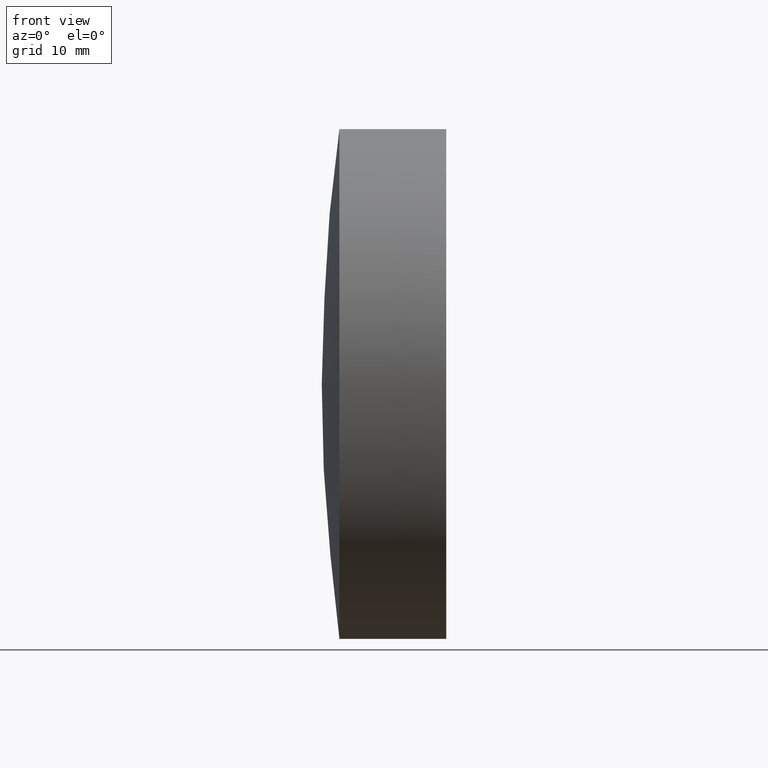
[diagram: clean part render]
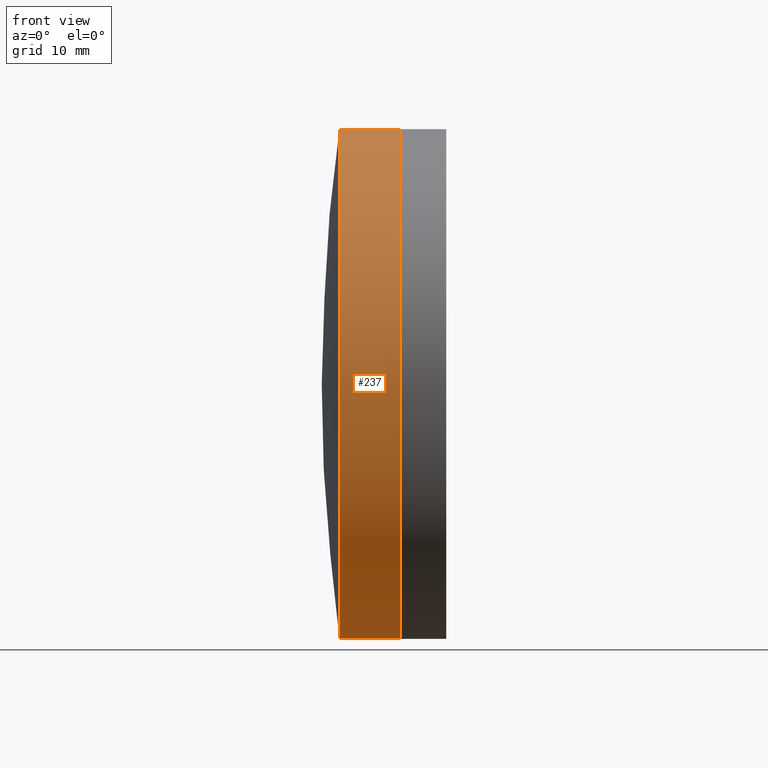
[diagram: same view with one face highlighted and labeled with its STEP entity id]
A machine part, front view. The second image highlights one B-rep face of the part: STEP entity #237.
In plain terms, the highlighted cylindrical surface (partial cylindrical patch) has radius 25.4 mm, axis along (-1, -0, -0).
Its self-contained STEP definition (entity closure, byte-faithful):
#9 = DIRECTION ( 'NONE',  ( -1.000000000000000000, -0.000000000000000000, -0.000000000000000000 ) ) ;
#17 = DIRECTION ( 'NONE',  ( 0.000000000000000000, 0.000000000000000000, 1.000000000000000000 ) ) ;
#35 = CARTESIAN_POINT ( 'NONE',  ( -24.78204361462951866, 13.39555463349441311, 25.39999999999999858 ) ) ;
#38 = EDGE_CURVE ( 'NONE', #236, #158, #132, .T. ) ;
#51 = ORIENTED_EDGE ( 'NONE', *, *, #69, .F. ) ;
#54 = CARTESIAN_POINT ( 'NONE',  ( -24.78204361462951866, 13.39555463349441666, -25.39999999999999858 ) ) ;
#69 = EDGE_CURVE ( 'NONE', #327, #120, #231, .T. ) ;
#82 = CIRCLE ( 'NONE', #206, 25.39999999999999858 ) ;
#105 = LINE ( 'NONE', #226, #260 ) ;
#108 = AXIS2_PLACEMENT_3D ( 'NONE', #240, #271, #394 ) ;
#110 = DIRECTION ( 'NONE',  ( 0.000000000000000000, 0.000000000000000000, 1.000000000000000000 ) ) ;
#118 = VERTEX_POINT ( 'NONE', #35 ) ;
#120 = VERTEX_POINT ( 'NONE', #165 ) ;
#132 = CIRCLE ( 'NONE', #392, 25.39999999999999858 ) ;
#136 = AXIS2_PLACEMENT_3D ( 'NONE', #184, #153, #17 ) ;
#138 = CARTESIAN_POINT ( 'NONE',  ( -24.78204361462953287, -12.00444536650550731, -3.110602869834267399E-15 ) ) ;
#140 = EDGE_LOOP ( 'NONE', ( #389, #357, #239, #393, #51, #371 ) ) ;
#144 = CYLINDRICAL_SURFACE ( 'NONE', #108, 25.39999999999999858 ) ;
#148 = EDGE_CURVE ( 'NONE', #236, #207, #166, .T. ) ;
#150 = CARTESIAN_POINT ( 'NONE',  ( -30.84311918241391837, -12.00444536650557303, -3.110602869834275682E-15 ) ) ;
#153 = DIRECTION ( 'NONE',  ( -1.000000000000000000, -0.000000000000000000, -0.000000000000000000 ) ) ;
#158 = VERTEX_POINT ( 'NONE', #138 ) ;
#163 = CARTESIAN_POINT ( 'NONE',  ( -24.78204361462951866, 13.39555463349441311, 0.000000000000000000 ) ) ;
#165 = CARTESIAN_POINT ( 'NONE',  ( -30.84311918241391837, 13.39555463349441311, 25.39999999999999858 ) ) ;
#166 = LINE ( 'NONE', #196, #360 ) ;
#173 = EDGE_CURVE ( 'NONE', #118, #120, #105, .T. ) ;
#176 = CARTESIAN_POINT ( 'NONE',  ( -24.78204361462951866, 13.39555463349441311, 0.000000000000000000 ) ) ;
#184 = CARTESIAN_POINT ( 'NONE',  ( -30.84311918241391837, 13.39555463349441311, 0.000000000000000000 ) ) ;
#192 = DIRECTION ( 'NONE',  ( -1.000000000000000000, -0.000000000000000000, -0.000000000000000000 ) ) ;
#196 = CARTESIAN_POINT ( 'NONE',  ( -32.60229064574473057, 13.39555463349441666, -25.39999999999999858 ) ) ;
#206 = AXIS2_PLACEMENT_3D ( 'NONE', #176, #398, #110 ) ;
#207 = VERTEX_POINT ( 'NONE', #243 ) ;
#226 = CARTESIAN_POINT ( 'NONE',  ( -32.60229064574473057, 13.39555463349441311, 25.39999999999999858 ) ) ;
#231 = CIRCLE ( 'NONE', #266, 25.39999999999999858 ) ;
#236 = VERTEX_POINT ( 'NONE', #54 ) ;
#237 = ADVANCED_FACE ( 'NONE', ( #341 ), #144, .T. ) ;
#239 = ORIENTED_EDGE ( 'NONE', *, *, #296, .T. ) ;
#240 = CARTESIAN_POINT ( 'NONE',  ( -32.60229064574473057, 13.39555463349441311, 0.000000000000000000 ) ) ;
#243 = CARTESIAN_POINT ( 'NONE',  ( -30.84311918241391837, 13.39555463349441666, -25.39999999999999858 ) ) ;
#246 = CARTESIAN_POINT ( 'NONE',  ( -30.84311918241391837, 13.39555463349441311, 0.000000000000000000 ) ) ;
#260 = VECTOR ( 'NONE', #363, 1000.000000000000000 ) ;
#266 = AXIS2_PLACEMENT_3D ( 'NONE', #246, #310, #313 ) ;
#271 = DIRECTION ( 'NONE',  ( -1.000000000000000000, -0.000000000000000000, -0.000000000000000000 ) ) ;
#293 = EDGE_CURVE ( 'NONE', #207, #327, #381, .T. ) ;
#296 = EDGE_CURVE ( 'NONE', #158, #118, #82, .T. ) ;
#310 = DIRECTION ( 'NONE',  ( -1.000000000000000000, -0.000000000000000000, -0.000000000000000000 ) ) ;
#313 = DIRECTION ( 'NONE',  ( 0.000000000000000000, 0.000000000000000000, 1.000000000000000000 ) ) ;
#314 = DIRECTION ( 'NONE',  ( 0.000000000000000000, 0.000000000000000000, 1.000000000000000000 ) ) ;
#327 = VERTEX_POINT ( 'NONE', #150 ) ;
#341 = FACE_OUTER_BOUND ( 'NONE', #140, .T. ) ;
#357 = ORIENTED_EDGE ( 'NONE', *, *, #38, .T. ) ;
#360 = VECTOR ( 'NONE', #9, 1000.000000000000000 ) ;
#363 = DIRECTION ( 'NONE',  ( -1.000000000000000000, -0.000000000000000000, -0.000000000000000000 ) ) ;
#371 = ORIENTED_EDGE ( 'NONE', *, *, #293, .F. ) ;
#381 = CIRCLE ( 'NONE', #136, 25.39999999999999858 ) ;
#389 = ORIENTED_EDGE ( 'NONE', *, *, #148, .F. ) ;
#392 = AXIS2_PLACEMENT_3D ( 'NONE', #163, #192, #314 ) ;
#393 = ORIENTED_EDGE ( 'NONE', *, *, #173, .T. ) ;
#394 = DIRECTION ( 'NONE',  ( 0.000000000000000000, 0.000000000000000000, 1.000000000000000000 ) ) ;
#398 = DIRECTION ( 'NONE',  ( -1.000000000000000000, -0.000000000000000000, -0.000000000000000000 ) ) ;